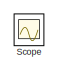
[diagram: root canvas - part 1/4, top left region]
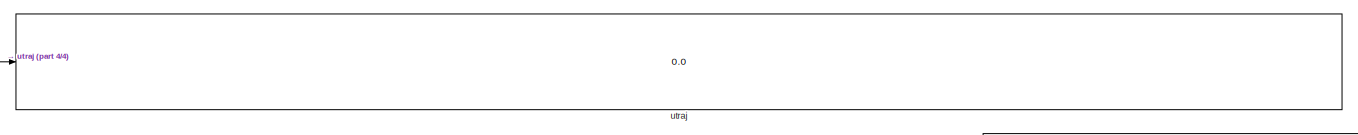
[diagram: root canvas - part 2/4, full width, middle band]
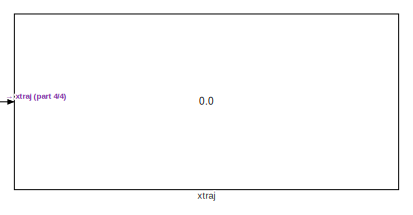
[diagram: root canvas - part 3/4, bottom right region]
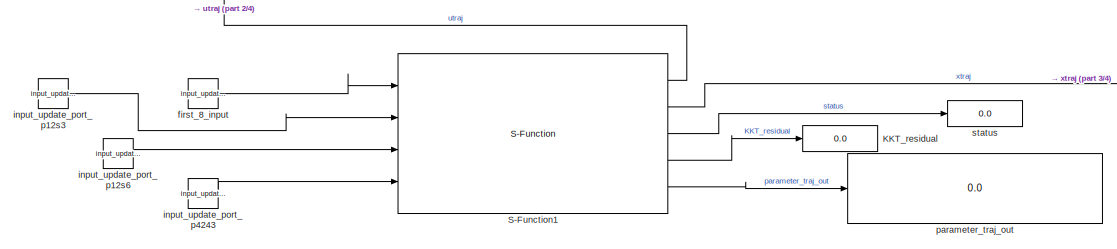
[diagram: root canvas - part 4/4, bottom center region]
MODEL slx_fcbc8bdef0e0
KIND model
CONFIG AbsTol = auto
CONFIG EnableMultiTasking = off
CONFIG FixedStep = auto
CONFIG MaxStep = auto
CONFIG MinStep = auto
CONFIG RelTol = 1e-3
CONFIG SampleTimeConstraint = Unconstrained
CONFIG Solver = ode45
CONFIG SolverName = ode45
CONFIG StartTime = 0.0
CONFIG StopTime = 0.1
BLOCK [Display] KKT_residual
  Decimation = 1
  Ports = [1]
BLOCK [S-Function] S-Function1
  EnableBusSupport = off
  FunctionName = acados_solver_sfunction_trivial
  Ports = [4, 5]
  SFcnIsStateOwnerBlock = off
  SFunctionDeploymentMode = off
BLOCK [Scope] Scope
  Floating = off
  IOType = viewer
  NumInputPorts = 1
  Ports = []
  ScopeSpecificationString = Simulink.scopes.TimeScopeBlockCfg('CurrentConfiguration', extmgr.ConfigurationSet(extmgr.Configuration('Core','General UI',true,'FigureColor',[0.156862745098039 0.156862745098039 0.156862745098039]),extmgr.Configuration('Core','Source UI',true),extmgr.Configuration('Sources','WiredSimulink',true,'DataLoggingVariableName','ScopeData1','DataLoggingSaveFormat','StructureWithTime','DataLoggingDecimati...<+2754ch>
BLOCK [Constant] first_8_input
  Value = input_update_port_first8
BLOCK [Constant] input_update_port_p12s3
  Value = input_update_port_p12_stage3
BLOCK [Constant] input_update_port_p12s6
  Value = input_update_port_p12_stage6
BLOCK [Constant] input_update_port_p4243
  Value = input_update_port_p4243
BLOCK [Display] parameter_traj_out
  Decimation = 1
  Ports = [1]
BLOCK [Display] status
  Decimation = 1
  Ports = [1]
BLOCK [Display] utraj
  Decimation = 1
  Ports = [1]
BLOCK [Display] xtraj
  Decimation = 1
  Ports = [1]
LINE S-Function1:1 -> utraj:1
LINE S-Function1:2 -> xtraj:1
LINE S-Function1:3 -> status:1
LINE S-Function1:4 -> KKT_residual:1
LINE S-Function1:5 -> parameter_traj_out:1
LINE first_8_input:1 -> S-Function1:1
LINE input_update_port_p12s3:1 -> S-Function1:2
LINE input_update_port_p12s6:1 -> S-Function1:3
LINE input_update_port_p4243:1 -> S-Function1:4
